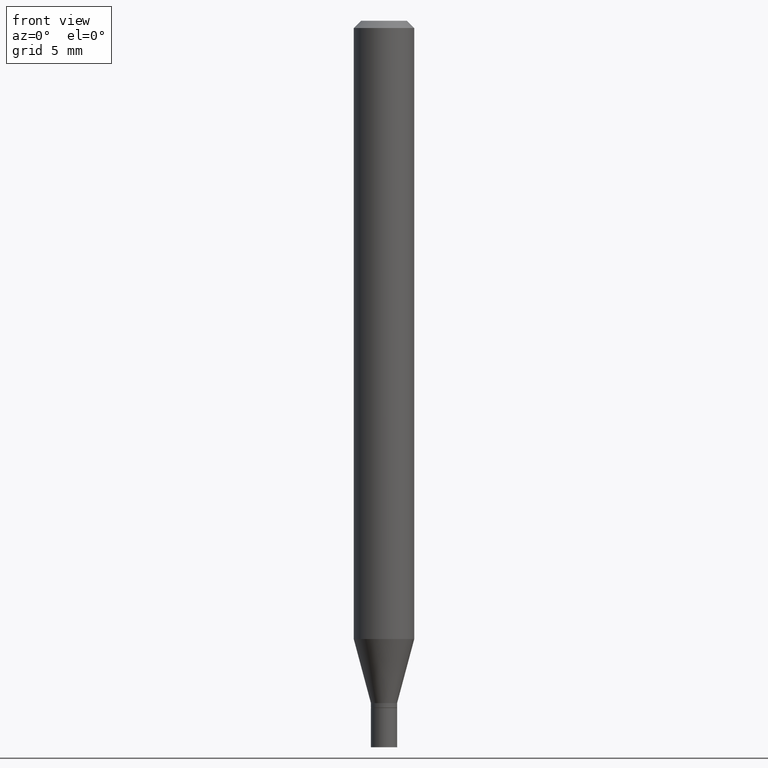
[diagram: clean part render]
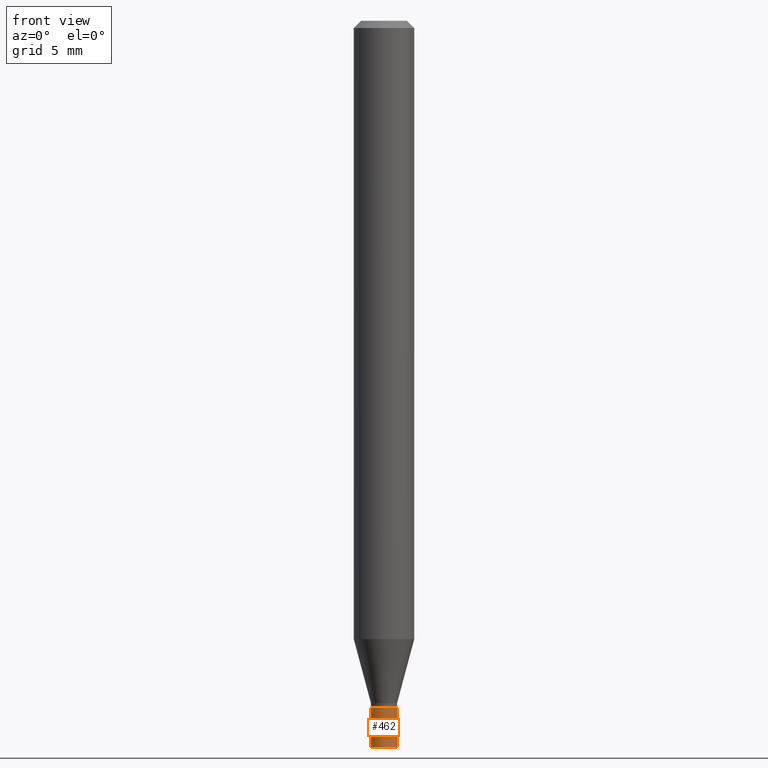
[diagram: same view with one face highlighted and labeled with its STEP entity id]
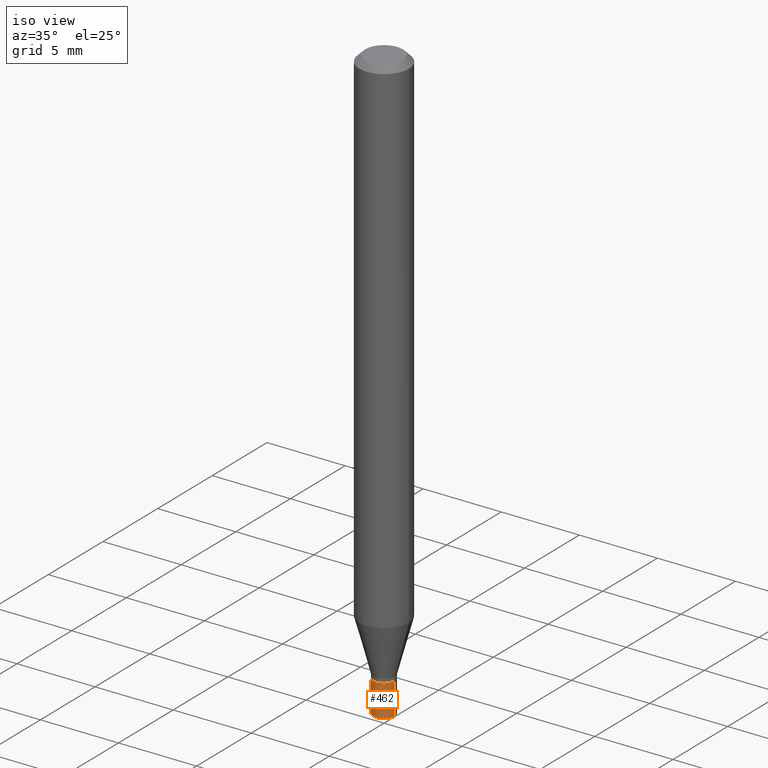
[diagram: same view with one face highlighted and labeled with its STEP entity id]
A machine part, front view. The second image highlights one B-rep face of the part: STEP entity #462.
A second angle (iso view) of the same face is appended — the face is thin or edge-on in the first view.
In plain terms, the highlighted cylindrical surface (edge-blend (fillet) strip) has radius 0.6858 mm, axis along (-0, 0, 1).
Its self-contained STEP definition (entity closure, byte-faithful):
#1 = EDGE_CURVE ( 'NONE', #166, #98, #235, .T. ) ;
#2 = CARTESIAN_POINT ( 'NONE',  ( 0.000000000000000000, 0.000000000000000000, 0.000000000000000000 ) ) ;
#7 = DIRECTION ( 'NONE',  ( -2.445468806185136597E-29, 3.491481338843145583E-15, 1.000000000000000000 ) ) ;
#12 = DIRECTION ( 'NONE',  ( -2.445468806185136597E-29, 3.491481338843145583E-15, 1.000000000000000000 ) ) ;
#27 = EDGE_CURVE ( 'NONE', #245, #101, #405, .T. ) ;
#34 = CYLINDRICAL_SURFACE ( 'NONE', #114, 0.02699999999999999969 ) ;
#38 = DIRECTION ( 'NONE',  ( -2.445468806185136877E-29, 3.491481338843145188E-15, 1.000000000000000000 ) ) ;
#51 = CARTESIAN_POINT ( 'NONE',  ( 3.668203209277704895E-29, -5.237222008264718177E-15, -1.500000000000000222 ) ) ;
#52 = ORIENTED_EDGE ( 'NONE', *, *, #1, .T. ) ;
#86 = ORIENTED_EDGE ( 'NONE', *, *, #208, .T. ) ;
#98 = VERTEX_POINT ( 'NONE', #336 ) ;
#101 = VERTEX_POINT ( 'NONE', #156 ) ;
#113 = CARTESIAN_POINT ( 'NONE',  ( 3.470120235976709172E-29, -4.954412019818423555E-15, -1.419000000000000039 ) ) ;
#114 = AXIS2_PLACEMENT_3D ( 'NONE', #2, #294, #367 ) ;
#156 = CARTESIAN_POINT ( 'NONE',  ( -0.02699999999999999969, -4.903970475386344434E-15, -1.419000000000000039 ) ) ;
#166 = VERTEX_POINT ( 'NONE', #212 ) ;
#176 = EDGE_CURVE ( 'NONE', #101, #98, #202, .T. ) ;
#200 = VECTOR ( 'NONE', #368, 39.37007874015748143 ) ;
#202 = CIRCLE ( 'NONE', #356, 0.02699999999999999969 ) ;
#208 = EDGE_CURVE ( 'NONE', #245, #166, #444, .T. ) ;
#212 = CARTESIAN_POINT ( 'NONE',  ( 0.02699999999999999969, -5.425762000562247662E-15, -1.500000000000000222 ) ) ;
#227 = CARTESIAN_POINT ( 'NONE',  ( -0.02699999999999999969, 1.918465386552270480E-16, -1.328112474368824466E-30 ) ) ;
#235 = LINE ( 'NONE', #261, #200 ) ;
#245 = VERTEX_POINT ( 'NONE', #381 ) ;
#261 = CARTESIAN_POINT ( 'NONE',  ( 0.02699999999999999969, -1.885399922975291894E-16, 1.316567729464902510E-30 ) ) ;
#263 = DIRECTION ( 'NONE',  ( 1.000000000000000000, -6.982962677686261189E-15, 0.000000000000000000 ) ) ;
#265 = VECTOR ( 'NONE', #38, 39.37007874015748143 ) ;
#294 = DIRECTION ( 'NONE',  ( -2.445468806185136597E-29, 3.491481338843145583E-15, 1.000000000000000000 ) ) ;
#316 = ORIENTED_EDGE ( 'NONE', *, *, #176, .F. ) ;
#336 = CARTESIAN_POINT ( 'NONE',  ( 0.02699999999999999969, -5.142952012115952251E-15, -1.419000000000000039 ) ) ;
#337 = DIRECTION ( 'NONE',  ( 1.000000000000000000, -6.982962677686261189E-15, 0.000000000000000000 ) ) ;
#351 = AXIS2_PLACEMENT_3D ( 'NONE', #51, #12, #337 ) ;
#356 = AXIS2_PLACEMENT_3D ( 'NONE', #113, #7, #263 ) ;
#367 = DIRECTION ( 'NONE',  ( 1.000000000000000000, -6.982962677686266711E-15, 4.876176775795935232E-29 ) ) ;
#368 = DIRECTION ( 'NONE',  ( -2.445468806185136877E-29, 3.491481338843145188E-15, 1.000000000000000000 ) ) ;
#381 = CARTESIAN_POINT ( 'NONE',  ( -0.02699999999999999969, -4.903970475386344434E-15, -1.500000000000000222 ) ) ;
#397 = FACE_OUTER_BOUND ( 'NONE', #404, .T. ) ;
#404 = EDGE_LOOP ( 'NONE', ( #457, #86, #52, #316 ) ) ;
#405 = LINE ( 'NONE', #227, #265 ) ;
#444 = CIRCLE ( 'NONE', #351, 0.02699999999999999969 ) ;
#457 = ORIENTED_EDGE ( 'NONE', *, *, #27, .F. ) ;
#462 = ADVANCED_FACE ( 'NONE', ( #397 ), #34, .T. ) ;